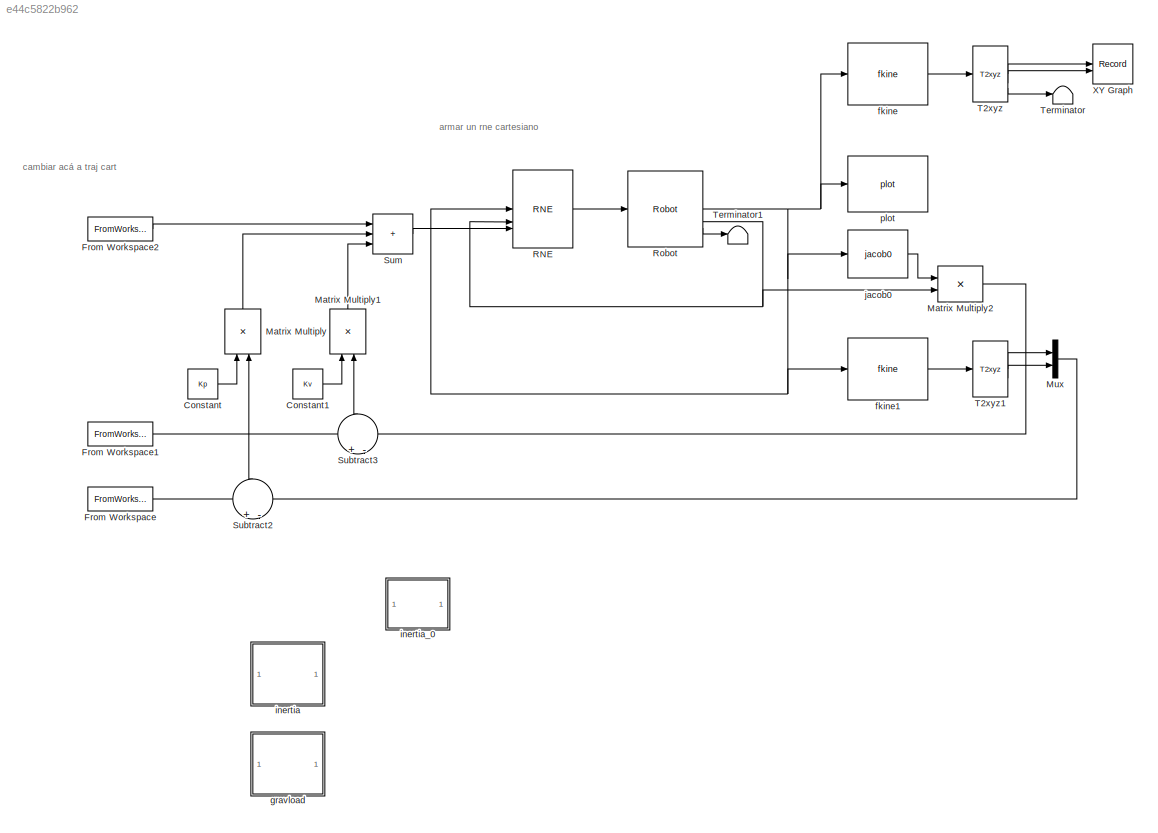
MODEL slx_e44c5822b962
KIND model
CONFIG AbsTol = auto
CONFIG EnableMultiTasking = off
CONFIG FixedStep = step
CONFIG MaxStep = auto
CONFIG MinStep = auto
CONFIG RelTol = 1e-3
CONFIG SampleTimeConstraint = Unconstrained
CONFIG SolverName = FixedStepAuto
CONFIG StartTime = 0.0
CONFIG StopTime = 2
BLOCK [Constant] Constant
  Value = Kp
BLOCK [Constant] Constant1
  Value = Kv
BLOCK [FromWorkspace] From Workspace
  SampleTime = step
  VariableName = sim_q
BLOCK [FromWorkspace] From Workspace1
  SampleTime = step
  VariableName = sim_qd
BLOCK [FromWorkspace] From Workspace2
  SampleTime = step
  VariableName = sim_qdd
BLOCK [Product] Matrix Multiply
  Multiplication = Matrix(*)
  NameLocation = right
BLOCK [Product] Matrix Multiply1
  Multiplication = Matrix(*)
  NameLocation = right
BLOCK [Product] Matrix Multiply2
  Multiplication = Matrix(*)
BLOCK [Mux] Mux
  DisplayOption = bar
  Inputs = 2
BLOCK [Reference] RNE  REF=roblocks/Arm/RNE  (lib defined in mdl_2a292b13c81b, mdl_69400f8cfe22, +12 more)
  SourceBlock = roblocks/Arm/RNE
BLOCK [Reference] Robot  REF=roblocks/Arm/Robot  (lib defined in mdl_2a292b13c81b, mdl_69400f8cfe22, +12 more)
  SourceBlock = roblocks/Arm/Robot
BLOCK [Sum] Subtract2
  Inputs = +-
  NameLocation = right
BLOCK [Sum] Subtract3
  Inputs = +-
  NameLocation = right
BLOCK [Sum] Sum
  IconShape = rectangular
  Inputs = |+++
BLOCK [Reference] T2xyz  REF=roblocks/Toolbox/T2xyz  (lib defined in mdl_2a292b13c81b, mdl_69400f8cfe22, +12 more)
  SourceBlock = roblocks/Toolbox/T2xyz
BLOCK [Reference] T2xyz1  REF=roblocks/Toolbox/T2xyz  (lib defined in mdl_2a292b13c81b, mdl_69400f8cfe22, +12 more)
  SourceBlock = roblocks/Toolbox/T2xyz
BLOCK [Terminator] Terminator
BLOCK [Terminator] Terminator1
BLOCK [Record] XY Graph
  CompatibilityTag = XY
  FileSettingsInternal = {"entries":[{"content":{"excelSettings":{"content":{},"type":"Streamout.ExcelSettings"}},"type":"Streamout.FileSettingStorage","uuid":""}],"packageUris":["http:\/\/schema.mathworks.com\/mf0\/streamout_blocks\/R2020a"],"version":"1.0"}
  Layout = [1 1]
  SignalsInternal = {"entries":[{"content":{"signals":[{"content":{"blockPath":[],"dimensions":[1],"domain":"","lineColor":"#a2142f","plots":[1],"port":1,"signalID":20,"signalName":"XY Graph:1"},"type":"RecordBlkView.Signal","uuid":""},{"content":{"blockPath":[],"dimensions":[1],"domain":"","lineColor":"#139fff","plots":[1],"port":2,"signalID":23,"signalName":"XY Graph:2"},"type":"RecordBlkView.Signal","uuid":""}]},"...<+142ch>
  VisualizationBindings = {"xyplotplugin":{"info":[{"series":[{"bindingParametersList":[{"parameter":"X-Axis","signalID":20,"signalName":"XY Graph:1"},{"parameter":"Y-Axis","signalID":23,"signalName":"XY Graph:2"}],"seriesID":32213}],"subplotID":1}]}}
  st = -1
BLOCK [Reference] fkine  REF=roblocks/Arm/fkine  (lib defined in mdl_2a292b13c81b, mdl_69400f8cfe22, +12 more)
  SourceBlock = roblocks/Arm/fkine
BLOCK [Reference] fkine1  REF=roblocks/Arm/fkine  (lib defined in mdl_2a292b13c81b, mdl_69400f8cfe22, +12 more)
  SourceBlock = roblocks/Arm/fkine
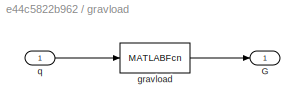
BLOCK [SubSystem] gravload
  AncestorBlock = roblocks/Arm/gravload
BLOCK [Outport] gravload/G
  VectorParamsAs1DForOutWhenUnconnected = off
BLOCK [MATLABFcn] gravload/gravload
  MATLABFcn = gravload(robot,u')
  Output1D = off
  OutputDimensions = [1 robot.n]
BLOCK [Inport] gravload/q
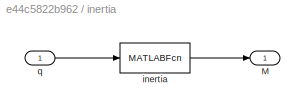
BLOCK [SubSystem] inertia
  AncestorBlock = roblocks/Arm/inertia
BLOCK [Outport] inertia/M
  VectorParamsAs1DForOutWhenUnconnected = off
BLOCK [MATLABFcn] inertia/inertia
  MATLABFcn = inertia(robot,u')
  Output1D = off
  OutputDimensions = [robot.n robot.n]
BLOCK [Inport] inertia/q
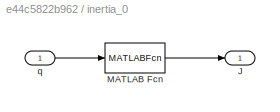
BLOCK [SubSystem] inertia_0
  AncestorBlock = roblocks/Arm/jacob0
BLOCK [Outport] inertia_0/J
  VectorParamsAs1DForOutWhenUnconnected = off
BLOCK [MATLABFcn] inertia_0/MATLAB Fcn
  MATLABFcn = inertia(robot,u')
  Output1D = off
  OutputDimensions = [robot.n robot.n]
BLOCK [Inport] inertia_0/q
BLOCK [Reference] jacob0   REF=roblocks/Arm/jacob0  (lib defined in mdl_2a292b13c81b, mdl_69400f8cfe22, +12 more)

  SourceBlock = roblocks/Arm/jacob0
BLOCK [Reference] plot  REF=roblocks/Arm/plot  (lib defined in mdl_2a292b13c81b, mdl_69400f8cfe22, +12 more)
  SourceBlock = roblocks/Arm/plot
ANNOTATION (root): armar un rne cartesiano
ANNOTATION (root): cambiar acá a traj cart
LINE Constant1:1 -> Matrix Multiply1:1
LINE Constant:1 -> Matrix Multiply:1
LINE From Workspace1:1 -> Subtract3:1
LINE From Workspace2:1 -> Sum:1
LINE From Workspace:1 -> Subtract2:1
LINE Matrix Multiply1:1 -> Sum:3
LINE Matrix Multiply2:1 -> Subtract3:2
LINE Matrix Multiply:1 -> Sum:2
LINE Mux:1 -> Subtract2:2
LINE RNE:1 -> Robot:1
NET Robot:1 -> RNE:1, fkine1:1, fkine:1, jacob0 :1, plot:1
NET Robot:2 -> Matrix Multiply2:2, RNE:2
LINE Robot:3 -> Terminator1:1
LINE Subtract2:1 -> Matrix Multiply:2
LINE Subtract3:1 -> Matrix Multiply1:2
LINE Sum:1 -> RNE:3
LINE T2xyz1:1 -> Mux:1
LINE T2xyz1:2 -> Mux:2
LINE T2xyz:1 -> XY Graph:1
LINE T2xyz:2 -> XY Graph:2
LINE T2xyz:3 -> Terminator:1
LINE fkine1:1 -> T2xyz1:1
LINE fkine:1 -> T2xyz:1
LINE jacob0 :1 -> Matrix Multiply2:1
note: NET lines group one-source signal fan-out (src -> all destinations, sorted); 1:1 wires keep LINE
